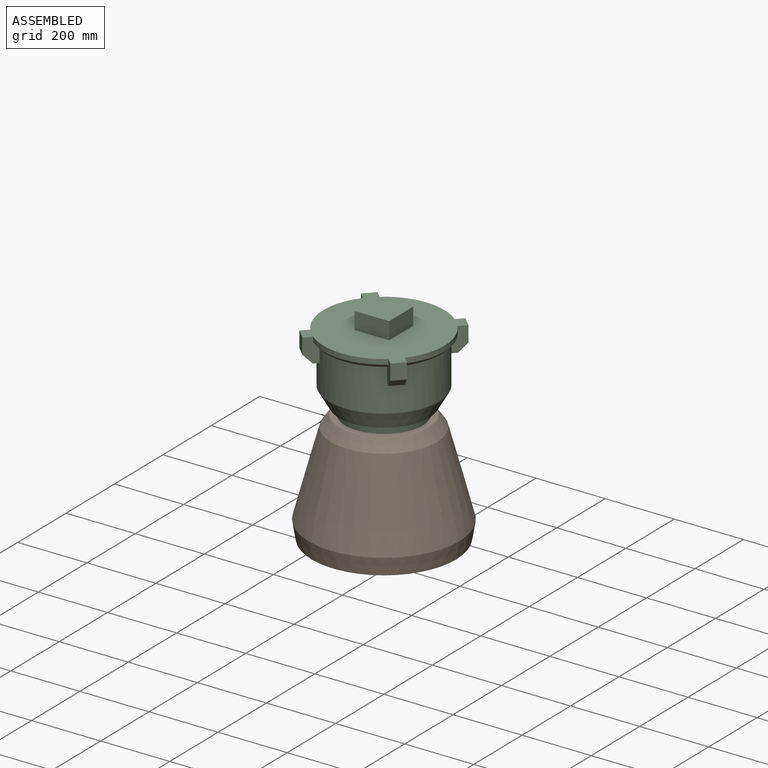
[diagram: assembled view]
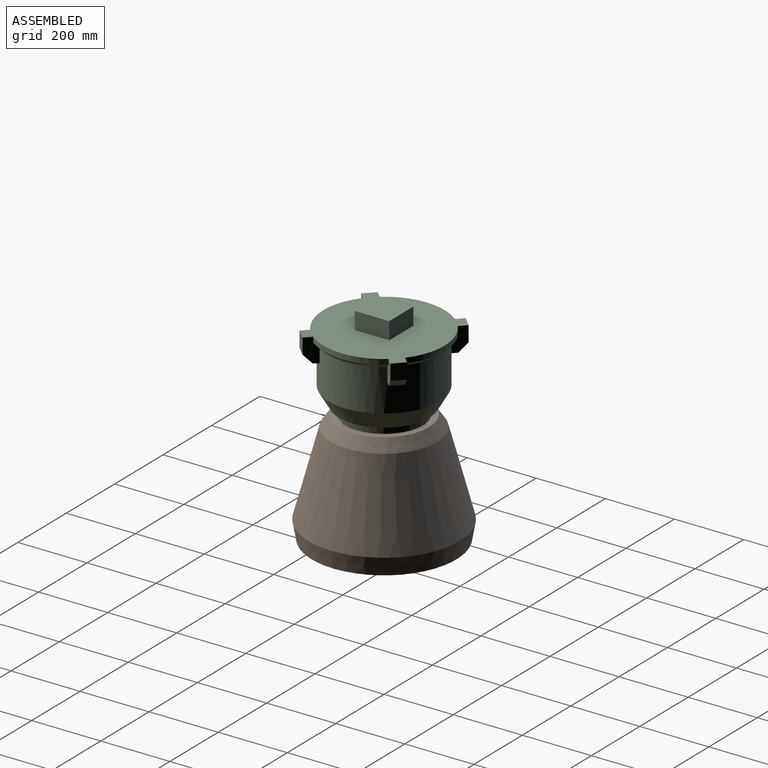
[diagram: assembled view, second angle]
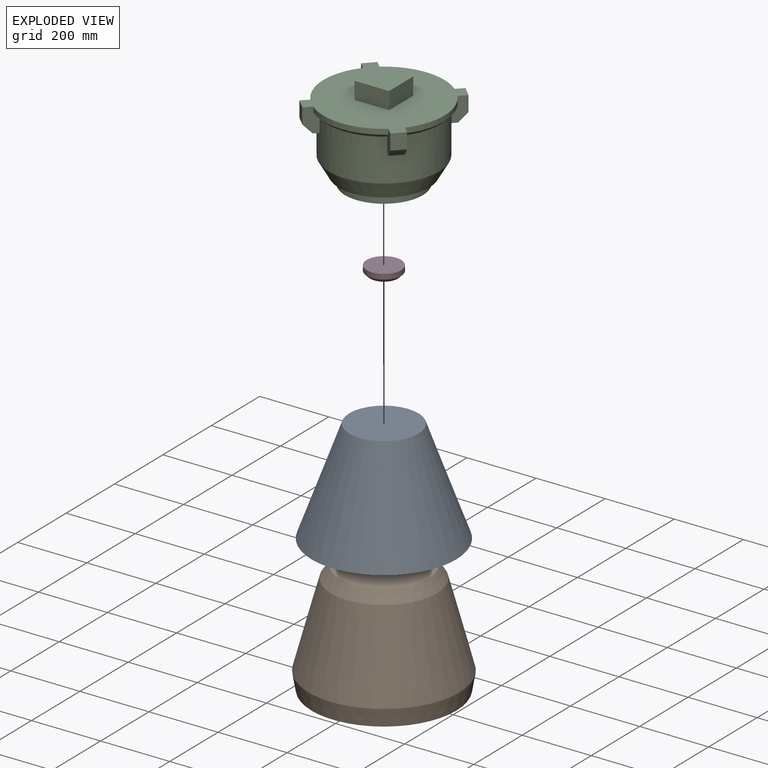
[diagram: exploded view]
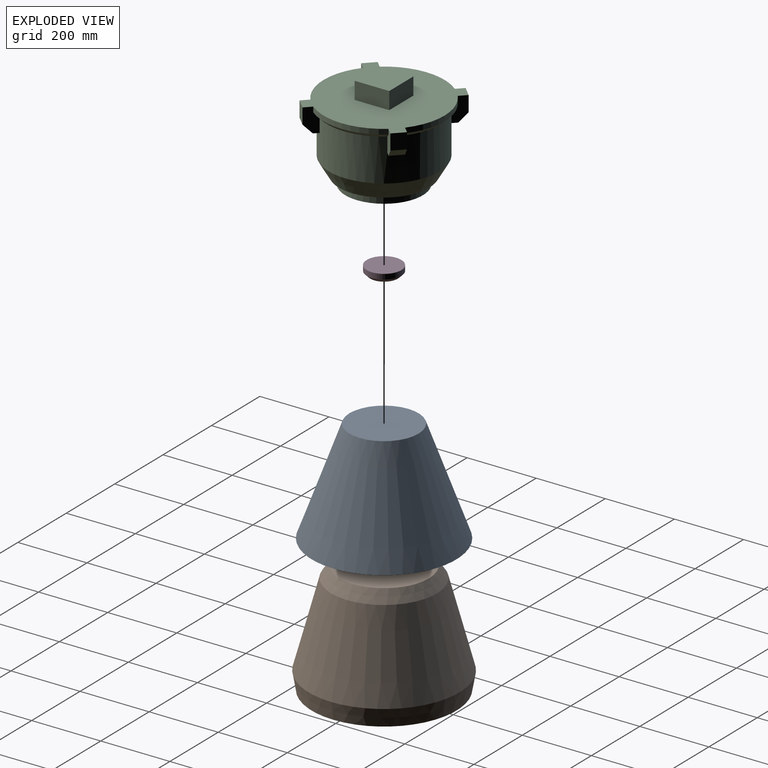
[diagram: exploded view, second angle]
ASSEMBLY  parts=4 mates=3
PART A: 6 faces, bbox 418.4x418.4x300 mm
  f0: plane 200x200mm, normal (0,0,1), area 31415.9mm2, adj f1
  f1: cone r=100mm half-angle=20deg, axis (0,0,-1), area 310107.5mm2, adj f0,f2
  f2: cone r=209.19mm half-angle=50deg, axis (0,0,-1), area 87679.5mm2, adj f1,f3
  f3: cone r=149.6mm half-angle=10deg, axis (0,0,-1), area 92282.6mm2, adj f2,f4
  f4: cone r=131.45mm half-angle=40deg, axis (0,0,-1), area 72238.2mm2, adj f3,f5
  f5: plane 100x100mm, normal (0,0,-1), area 7854mm2, adj f4
PART B: 11 faces, bbox 436x436x350 mm
  f0: plane 260x260mm, normal (0,0,1), area 50592.9mm2, adj f1,f6,f7,f8,f9
  f1: cone r=153.2mm half-angle=35deg, axis (0,0,-1), area 35984.8mm2, adj f0,f2
  f2: cone r=218.01mm half-angle=15deg, axis (0,0,-1), area 292012mm2, adj f1,f3
  f3: cone r=209.19mm half-angle=10deg, axis (0,0,1), area 68139.4mm2, adj f2,f4
  f4: cone r=100mm half-angle=20deg, axis (0,0,-1), area 310107.5mm2, adj f3,f5
  f5: plane 200x200mm, normal (0,0,-1), area 31415.9mm2, adj f4
  f6: plane 50x25mm, normal (0,1,0), area 1250mm2, adj f0,f7,f9,f10
  f7: plane 50x25mm, normal (-1,0,0), area 1250mm2, adj f0,f6,f8,f10
  f8: plane 50x25mm, normal (0,-1,0), area 1250mm2, adj f0,f7,f9,f10
  f9: plane 50x25mm, normal (1,0,0), area 1250mm2, adj f0,f6,f8,f10
  f10: plane 50x50mm, normal (0,0,1), area 2500mm2, adj f6,f7,f8,f9
PART C: 48 faces, bbox 350x350x275 mm
  f0: plane 225x225mm, normal (0,0,-1), area 37260.8mm2, adj f42,f43,f44,f45,f46
  f1: cylinder r=175mm len=217.58mm, axis (0,0,1), area 3522mm2, adj f6,f14,f23,f37
  f2: cylinder r=175mm len=217.58mm, axis (0,0,1), area 3522mm2, adj f7,f14,f32,f38
  f3: plane 203.34x38.61mm, normal (0,0,-1), area 1075.8mm2, adj f5,f6,f23,f37
  f4: plane 203.34x38.61mm, normal (0,0,-1), area 1075.8mm2, adj f5,f7,f32,f38
  f5: cylinder r=160mm len=320mm, axis (0,0,1), area 118444.8mm2, adj f3,f4,f9,f12,f16,f22,f23,f25
  f6: cone r=175mm half-angle=45deg, axis (0,0,1), area 3209.5mm2, adj f1,f3,f23,f37
  f7: cone r=175mm half-angle=45deg, axis (0,0,1), area 3209.5mm2, adj f2,f4,f32,f38
  f8: cylinder r=175mm len=217.58mm, axis (0,0,1), area 3522mm2, adj f10,f14,f27,f33
  f9: plane 203.34x38.61mm, normal (0,0,-1), area 1075.8mm2, adj f5,f10,f27,f33
  f10: cone r=175mm half-angle=45deg, axis (0,0,1), area 3209.5mm2, adj f8,f9,f27,f33
  f11: cylinder r=175mm len=217.58mm, axis (0,0,1), area 3522mm2, adj f13,f14,f22,f28
  f12: plane 203.34x38.61mm, normal (0,0,-1), area 1075.8mm2, adj f5,f13,f22,f28
  f13: cone r=175mm half-angle=45deg, axis (0,0,1), area 3209.5mm2, adj f11,f12,f22,f28
  f14: plane 350x350mm, normal (0,0,1), area 90272.3mm2, adj f1,f2,f8,f11,f17,f18,f19,f20
  f15: plane 262.27x262.27mm, normal (0,0,-1), area 14261.2mm2, adj f16,f42
  f16: cone r=131.13mm half-angle=30deg, axis (0,0,1), area 52805.6mm2, adj f5,f15
  f17: plane 100x50mm, normal (0,1,0), area 5000mm2, adj f14,f18,f20,f21
  f18: plane 100x50mm, normal (-1,0,0), area 5000mm2, adj f14,f17,f19,f21
  f19: plane 100x50mm, normal (0,-1,0), area 5000mm2, adj f14,f18,f20,f21
  f20: plane 100x50mm, normal (1,0,0), area 5000mm2, adj f14,f17,f19,f21
  f21: plane 100x100mm, normal (0,0,1), area 10000mm2, adj f17,f18,f19,f20
  f22: plane 70x29.17mm, normal (-0.71,0.71,0), area 2248mm2, adj f5,f11,f12,f13,f14,f24,f25,f26
  f23: plane 70x29.17mm, normal (0.71,-0.71,0), area 2248mm2, adj f1,f3,f5,f6,f14,f24,f25,f26
  f24: plane 45x28.28mm, normal (0.71,0.71,0), area 1800mm2, adj f14,f22,f23,f26
  f25: plane 39.78x39.78mm, normal (0,0,-1), area 616.7mm2, adj f5,f22,f23,f26
  f26: plane 45.96x45.96mm, normal (0.5,0.5,-0.71), area 1414.2mm2, adj f22,f23,f24,f25
  f27: plane 70x29.17mm, normal (-0.71,-0.71,0), area 2248mm2, adj f5,f8,f9,f10,f14,f29,f30,f31
  f28: plane 70x29.17mm, normal (0.71,0.71,0), area 2248mm2, adj f5,f11,f12,f13,f14,f29,f30,f31
  f29: plane 45x28.28mm, normal (-0.71,0.71,0), area 1800mm2, adj f14,f27,f28,f31
  f30: plane 39.78x39.78mm, normal (0,0,-1), area 616.7mm2, adj f5,f27,f28,f31
  f31: plane 45.96x45.96mm, normal (-0.5,0.5,-0.71), area 1414.2mm2, adj f27,f28,f29,f30
  f32: plane 70x29.17mm, normal (0.71,-0.71,0), area 2248mm2, adj f2,f4,f5,f7,f14,f34,f35,f36
  f33: plane 70x29.17mm, normal (-0.71,0.71,0), area 2248mm2, adj f5,f8,f9,f10,f14,f34,f35,f36
  f34: plane 45x28.28mm, normal (-0.71,-0.71,0), area 1800mm2, adj f14,f32,f33,f36
  f35: plane 39.78x39.78mm, normal (0,0,-1), area 616.7mm2, adj f5,f32,f33,f36
  f36: plane 45.96x45.96mm, normal (-0.5,-0.5,-0.71), area 1414.2mm2, adj f32,f33,f34,f35
  f37: plane 70x29.17mm, normal (0.71,0.71,0), area 2248mm2, adj f1,f3,f5,f6,f14,f39,f40,f41
  f38: plane 70x29.17mm, normal (-0.71,-0.71,0), area 2248mm2, adj f2,f4,f5,f7,f14,f39,f40,f41
  f39: plane 45x28.28mm, normal (0.71,-0.71,0), area 1800mm2, adj f14,f37,f38,f41
  f40: plane 39.78x39.78mm, normal (0,0,-1), area 616.7mm2, adj f5,f37,f38,f41
  f41: plane 45.96x45.96mm, normal (0.5,-0.5,-0.71), area 1414.2mm2, adj f37,f38,f39,f40
  f42: cylinder r=112.5mm len=225mm, axis (0,0,1), area 17671.5mm2, adj f0,f15
  f43: plane 50x25mm, normal (0,1,0), area 1250mm2, adj f0,f44,f46,f47
  f44: plane 50x25mm, normal (1,0,0), area 1250mm2, adj f0,f43,f45,f47
  f45: plane 50x25mm, normal (0,-1,0), area 1250mm2, adj f0,f44,f46,f47
  f46: plane 50x25mm, normal (-1,0,0), area 1250mm2, adj f0,f43,f45,f47
  f47: plane 50x50mm, normal (0,0,-1), area 2500mm2, adj f43,f44,f45,f46
PART D: 4 faces, bbox 100x100x25 mm
  f0: plane 100x100mm, normal (0,0,1), area 7854mm2, adj f1
  f1: cylinder r=50mm len=100mm, axis (0,0,-1), area 4712.4mm2, adj f0,f3
  f2: plane 80x80mm, normal (0,0,-1), area 5026.5mm2, adj f3
  f3: cone r=40mm half-angle=45deg, axis (0,0,1), area 3998.6mm2, adj f1,f2
PLACE A t=(0,0,-275)mm
PLACE B t=(0,0,-250)mm
PLACE C t=(0,0,-25)mm
PLACE D t=(0,0,-325)mm
MATE fastened D.f1 <-> A.f1  axis (0,0,1) through (0,0,-325)mm
MATE fastened B.f1 <-> C.f42  axis (0,0,1) through (0,0,-225)mm
MATE fastened A.f1 <-> B.f1  axis (0,0,1) through (0,0,-275)mm
